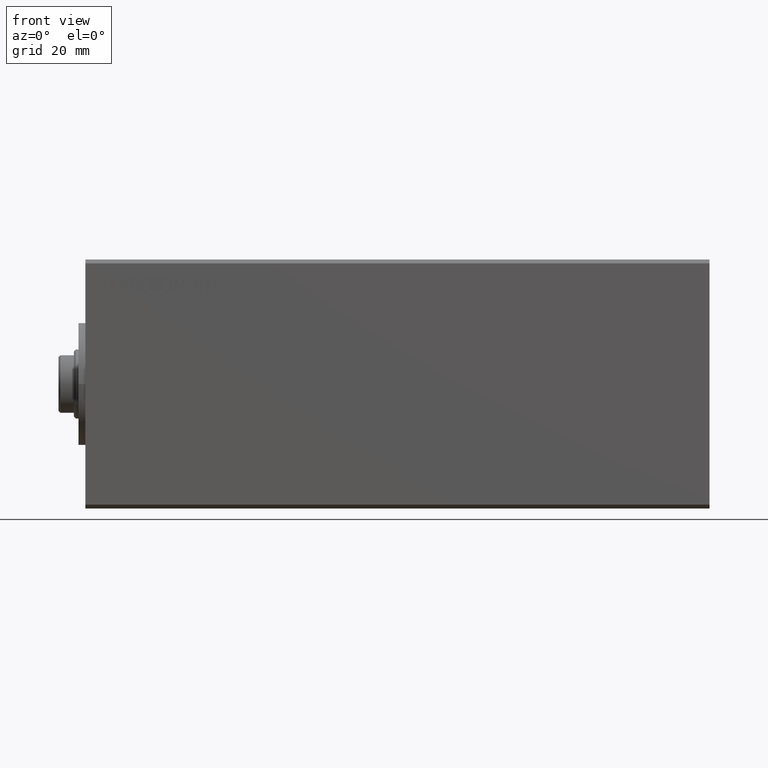
[diagram: clean part render]
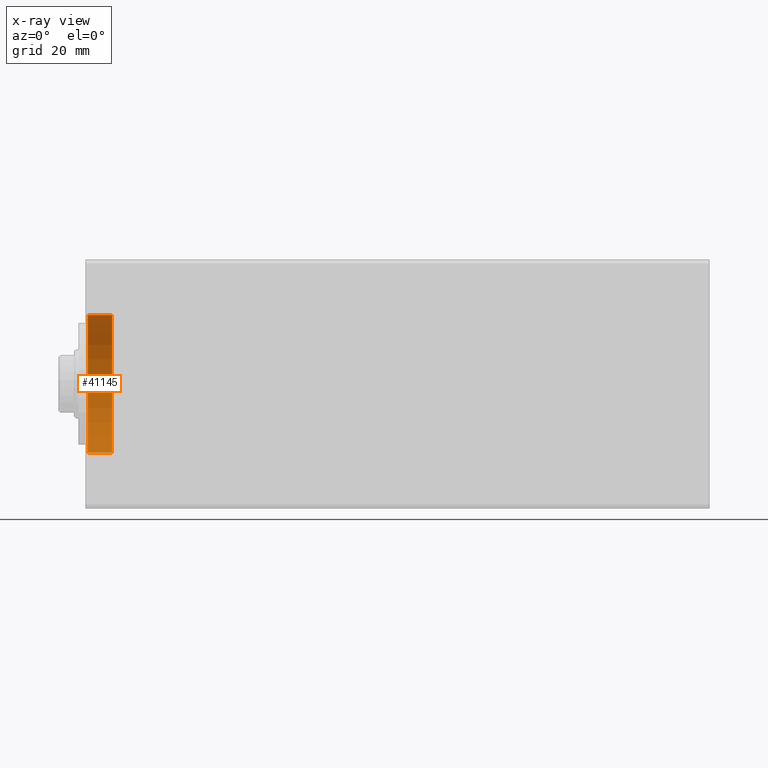
[diagram: x-ray — body ghosted, one internal face saturated and labeled with its STEP entity id]
A machine part, front view, then the same camera in x-ray: the body is ghosted and one INTERNAL B-rep face — a face not visible from any outside direction — is saturated and labeled: STEP entity #41145.
In plain terms, the highlighted cylindrical surface (partial cylindrical patch) has radius 18 mm, axis along (-1, -0, -0).
Its self-contained STEP definition (entity closure, byte-faithful):
#2609 = CARTESIAN_POINT ( 'NONE',  ( 7.000000000000000000, 2.204364238465235428E-15, -18.00000000000000000 ) ) ;
#6746 = EDGE_CURVE ( 'NONE', #40767, #21787, #19724, .T. ) ;
#7079 = DIRECTION ( 'NONE',  ( -1.000000000000000000, 0.000000000000000000, 0.000000000000000000 ) ) ;
#7501 = VECTOR ( 'NONE', #29787, 1000.000000000000000 ) ;
#8160 = EDGE_CURVE ( 'NONE', #21787, #8973, #11889, .T. ) ;
#8973 = VERTEX_POINT ( 'NONE', #22005 ) ;
#8987 = ORIENTED_EDGE ( 'NONE', *, *, #15808, .F. ) ;
#10498 = CARTESIAN_POINT ( 'NONE',  ( 7.000000000000000000, 0.000000000000000000, 0.000000000000000000 ) ) ;
#10804 = EDGE_LOOP ( 'NONE', ( #8987, #20818, #26180, #29037 ) ) ;
#10842 = EDGE_CURVE ( 'NONE', #40767, #31143, #35324, .T. ) ;
#11889 = CIRCLE ( 'NONE', #32317, 18.00000000000000000 ) ;
#11935 = DIRECTION ( 'NONE',  ( 0.000000000000000000, 0.000000000000000000, 1.000000000000000000 ) ) ;
#11955 = AXIS2_PLACEMENT_3D ( 'NONE', #10498, #7079, #20341 ) ;
#14214 = DIRECTION ( 'NONE',  ( 0.000000000000000000, 0.000000000000000000, -1.000000000000000000 ) ) ;
#14247 = DIRECTION ( 'NONE',  ( -1.000000000000000000, -0.000000000000000000, -0.000000000000000000 ) ) ;
#14444 = DIRECTION ( 'NONE',  ( -1.000000000000000000, 0.000000000000000000, 0.000000000000000000 ) ) ;
#15782 = CARTESIAN_POINT ( 'NONE',  ( 7.000000000000000000, 2.204364238465235428E-15, -18.00000000000000000 ) ) ;
#15808 = EDGE_CURVE ( 'NONE', #31143, #8973, #37568, .T. ) ;
#17684 = CARTESIAN_POINT ( 'NONE',  ( 7.000000000000000000, 0.000000000000000000, 0.000000000000000000 ) ) ;
#17970 = VECTOR ( 'NONE', #23874, 1000.000000000000000 ) ;
#19724 = LINE ( 'NONE', #26578, #7501 ) ;
#20341 = DIRECTION ( 'NONE',  ( 0.000000000000000000, 0.000000000000000000, 1.000000000000000000 ) ) ;
#20818 = ORIENTED_EDGE ( 'NONE', *, *, #10842, .F. ) ;
#21125 = FACE_OUTER_BOUND ( 'NONE', #10804, .T. ) ;
#21787 = VERTEX_POINT ( 'NONE', #22459 ) ;
#22005 = CARTESIAN_POINT ( 'NONE',  ( 0.6999999999999749756, 2.204364238465235428E-15, -18.00000000000000000 ) ) ;
#22459 = CARTESIAN_POINT ( 'NONE',  ( 0.6999999999999749756, 0.000000000000000000, 18.00000000000000000 ) ) ;
#23874 = DIRECTION ( 'NONE',  ( -1.000000000000000000, -0.000000000000000000, -0.000000000000000000 ) ) ;
#25298 = AXIS2_PLACEMENT_3D ( 'NONE', #17684, #14247, #11935 ) ;
#26180 = ORIENTED_EDGE ( 'NONE', *, *, #6746, .T. ) ;
#26578 = CARTESIAN_POINT ( 'NONE',  ( 7.000000000000000000, 0.000000000000000000, 18.00000000000000000 ) ) ;
#29037 = ORIENTED_EDGE ( 'NONE', *, *, #8160, .T. ) ;
#29787 = DIRECTION ( 'NONE',  ( -1.000000000000000000, -0.000000000000000000, -0.000000000000000000 ) ) ;
#31143 = VERTEX_POINT ( 'NONE', #15782 ) ;
#32317 = AXIS2_PLACEMENT_3D ( 'NONE', #38437, #14444, #14214 ) ;
#35053 = CYLINDRICAL_SURFACE ( 'NONE', #25298, 18.00000000000000000 ) ;
#35324 = CIRCLE ( 'NONE', #11955, 18.00000000000000000 ) ;
#37568 = LINE ( 'NONE', #2609, #17970 ) ;
#38437 = CARTESIAN_POINT ( 'NONE',  ( 0.6999999999999749756, 0.000000000000000000, 0.000000000000000000 ) ) ;
#40767 = VERTEX_POINT ( 'NONE', #41333 ) ;
#41145 = ADVANCED_FACE ( 'NONE', ( #21125 ), #35053, .F. ) ;
#41333 = CARTESIAN_POINT ( 'NONE',  ( 7.000000000000000000, 0.000000000000000000, 18.00000000000000000 ) ) ;